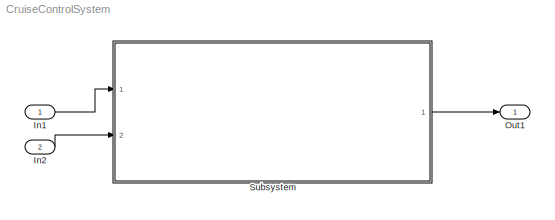
MODEL CruiseControlSystem
KIND model
BLOCK [Inport] In1
  IconDisplay = Port number
  OutDataTypeStr = single
  SID = 16
BLOCK [Inport] In2
  IconDisplay = Port number
  OutDataTypeStr = single
  Port = 2
  SID = 22
BLOCK [Outport] Out1
  IconDisplay = Port number
  SID = 17
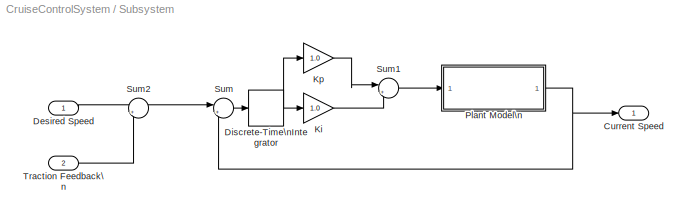
BLOCK [SubSystem] Subsystem
  Ports = [2, 1]
  RequestExecContextInheritance = off
  SID = 1
BLOCK [Outport] Subsystem/Current Speed
  IconDisplay = Port number
  SID = 3
BLOCK [Inport] Subsystem/Desired Speed
  IconDisplay = Port number
  SID = 2
BLOCK [DiscreteIntegrator] Subsystem/Discrete-Time\nIntegrator
  Ports = [1, 1]
  SID = 19
BLOCK [Gain] Subsystem/Ki
  Gain = 1.0
  OutDataTypeStr = Inherit: Inherit via internal rule
  ParamDataTypeStr = Inherit: Inherit via internal rule
  SID = 4
  SaturateOnIntegerOverflow = off
BLOCK [Gain] Subsystem/Kp
  Gain = 1.0
  OutDataTypeStr = Inherit: Inherit via internal rule
  ParamDataTypeStr = Inherit: Inherit via internal rule
  SID = 5
  SaturateOnIntegerOverflow = off
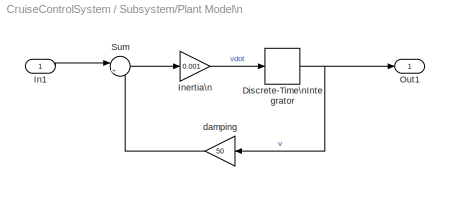
BLOCK [SubSystem] Subsystem/Plant Model\n
  Ports = [1, 1]
  RequestExecContextInheritance = off
  SID = 7
BLOCK [DiscreteIntegrator] Subsystem/Plant Model\n/Discrete-Time\nIntegrator
  Ports = [1, 1]
  SID = 18
BLOCK [Inport] Subsystem/Plant Model\n/In1
  IconDisplay = Port number
  SID = 8
BLOCK [Gain] Subsystem/Plant Model\n/Inertia\n
  Gain = 0.001
  OutDataTypeStr = Inherit: Inherit via internal rule
  ParamDataTypeStr = Inherit: Inherit via internal rule
  SID = 9
  SaturateOnIntegerOverflow = off
BLOCK [Outport] Subsystem/Plant Model\n/Out1
  IconDisplay = Port number
  SID = 13
BLOCK [Sum] Subsystem/Plant Model\n/Sum
  IconShape = round
  InputSameDT = off
  Inputs = |+-
  OutDataTypeStr = Inherit: Inherit via internal rule
  Ports = [2, 1]
  SID = 11
  SaturateOnIntegerOverflow = off
BLOCK [Gain] Subsystem/Plant Model\n/damping
  Gain = 50
  OutDataTypeStr = Inherit: Inherit via internal rule
  ParamDataTypeStr = Inherit: Inherit via internal rule
  SID = 12
  SaturateOnIntegerOverflow = off
BLOCK [Sum] Subsystem/Sum
  IconShape = round
  InputSameDT = off
  Inputs = |+-
  OutDataTypeStr = Inherit: Inherit via internal rule
  Ports = [2, 1]
  SID = 14
  SaturateOnIntegerOverflow = off
BLOCK [Sum] Subsystem/Sum1
  IconShape = round
  InputSameDT = off
  Inputs = |++
  OutDataTypeStr = Inherit: Inherit via internal rule
  Ports = [2, 1]
  SID = 15
  SaturateOnIntegerOverflow = off
BLOCK [Sum] Subsystem/Sum2
  IconShape = round
  InputSameDT = off
  Inputs = |+-
  OutDataTypeStr = Inherit: Inherit via internal rule
  Ports = [2, 1]
  SID = 20
  SaturateOnIntegerOverflow = off
BLOCK [Inport] Subsystem/Traction Feedback\n
  IconDisplay = Port number
  Port = 2
  SID = 21
LINE In1:1 -> Subsystem:1
LINE In2:1 -> Subsystem:2
LINE Subsystem/Desired Speed:1 -> Subsystem/Sum:1
NET Subsystem/Discrete-Time\nIntegrator:1 -> Subsystem/Ki:1, Subsystem/Kp:1
LINE Subsystem/Ki:1 -> Subsystem/Sum1:2
LINE Subsystem/Kp:1 -> Subsystem/Sum1:1
NET Subsystem/Plant Model\n/Discrete-Time\nIntegrator:1 -> Subsystem/Plant Model\n/Out1:1, Subsystem/Plant Model\n/damping:1
LINE Subsystem/Plant Model\n/In1:1 -> Subsystem/Plant Model\n/Sum:1
LINE Subsystem/Plant Model\n/Inertia\n:1 -> Subsystem/Plant Model\n/Discrete-Time\nIntegrator:1
LINE Subsystem/Plant Model\n/Sum:1 -> Subsystem/Plant Model\n/Inertia\n:1
LINE Subsystem/Plant Model\n/damping:1 -> Subsystem/Plant Model\n/Sum:2
NET Subsystem/Plant Model\n:1 -> Subsystem/Current Speed:1, Subsystem/Sum:2
LINE Subsystem/Sum1:1 -> Subsystem/Plant Model\n:1
LINE Subsystem/Sum:1 -> Subsystem/Discrete-Time\nIntegrator:1
LINE Subsystem/Traction Feedback\n:1 -> Subsystem/Sum2:2
LINE Subsystem:1 -> Out1:1
note: NET lines group one-source signal fan-out (src -> all destinations, sorted); 1:1 wires keep LINE
